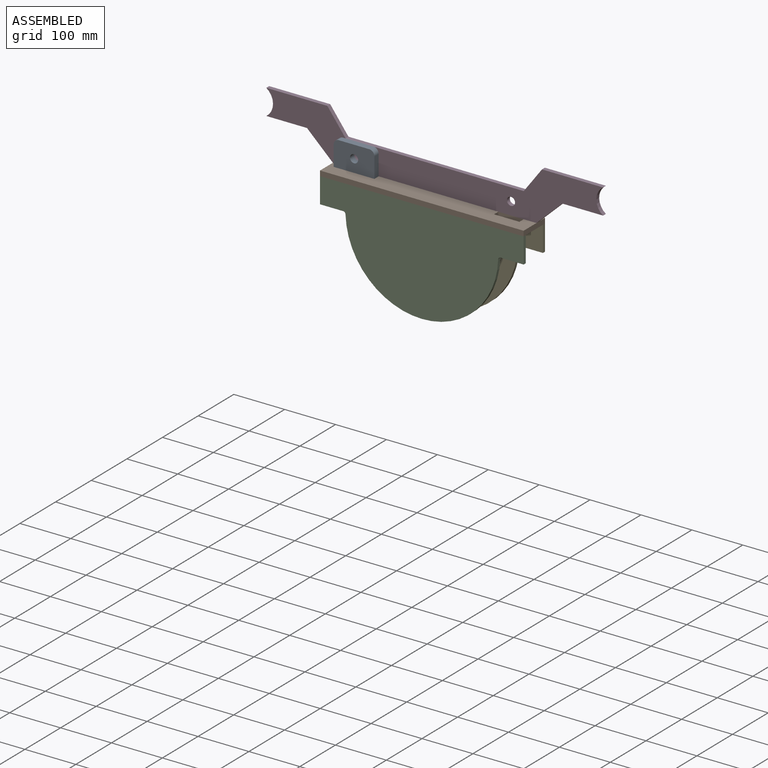
[diagram: assembled view]
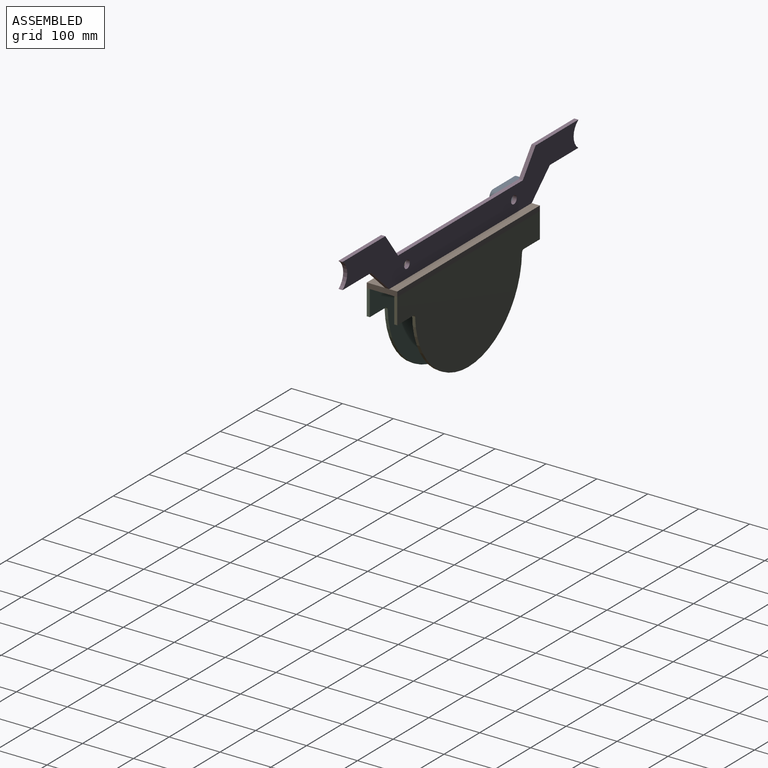
[diagram: assembled view, second angle]
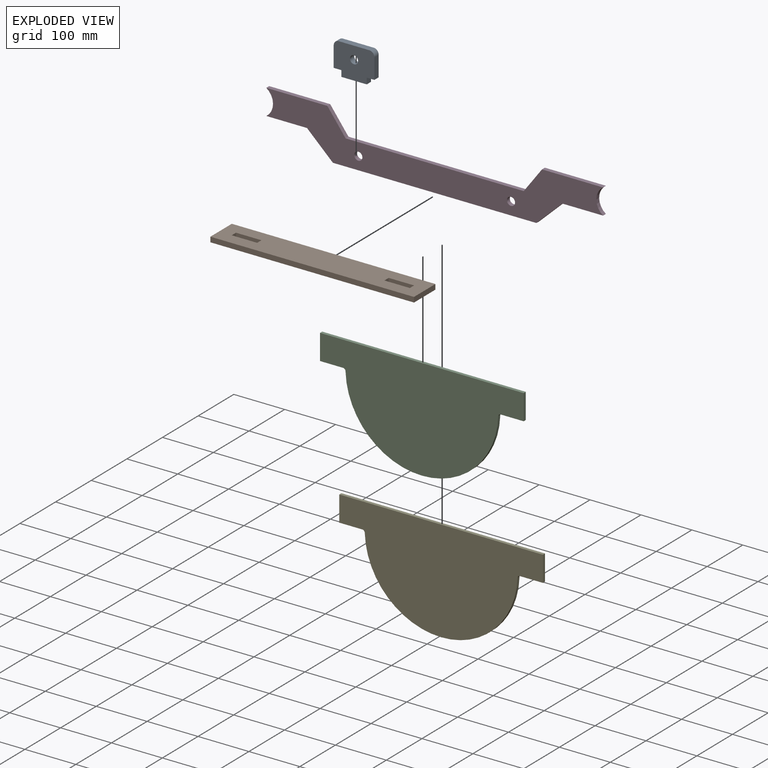
[diagram: exploded view]
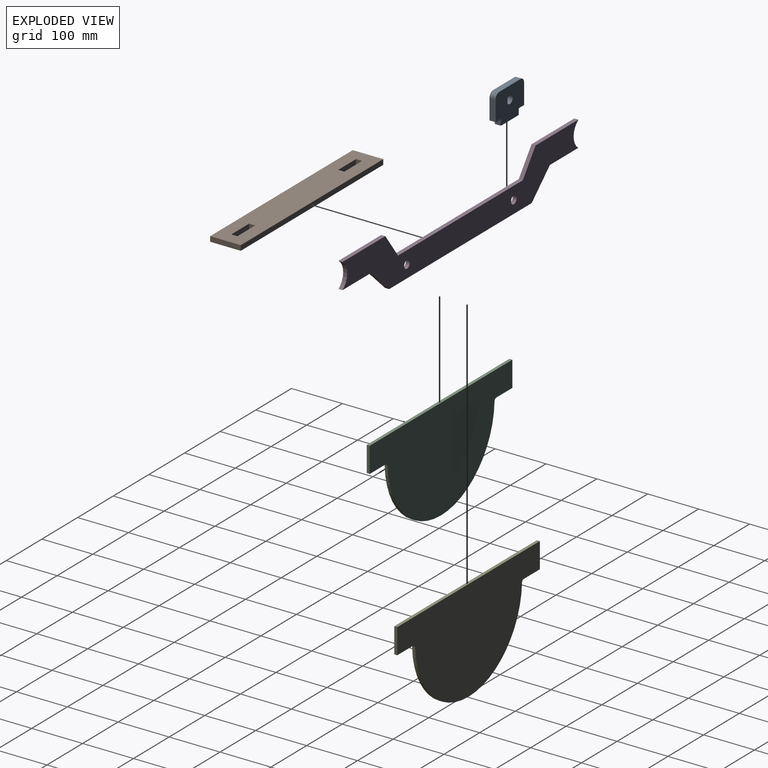
[diagram: exploded view, second angle]
ASSEMBLY  parts=5 mates=4
PART A: 13 faces, bbox 80x12x62 mm
  f0: plane 60x12mm, normal (0,0,1), area 720mm2, adj f9,f10,f11,f12
  f1: plane 40x12mm, normal (-1,0,0), area 480mm2, adj f2,f9,f10,f11
  f2: plane 15x12mm, normal (0,0,-1), area 180mm2, adj f1,f3,f9,f10
  f3: plane 12x12mm, normal (-1,0,0), area 144mm2, adj f2,f4,f9,f10
  f4: plane 50x12mm, normal (0,0,-1), area 600mm2, adj f3,f5,f9,f10
  f5: plane 12x12mm, normal (1,0,0), area 144mm2, adj f4,f6,f9,f10
  f6: plane 15x12mm, normal (0,0,-1), area 180mm2, adj f5,f7,f9,f10
  f7: plane 40x12mm, normal (1,0,0), area 480mm2, adj f6,f9,f10,f12
  f8: cylinder r=8mm len=16mm, axis (0,1,0), area 603.2mm2, adj f9,f10
  f9: plane 80x62mm, normal (0,-1,0), area 4356mm2, adj f0,f1,f2,f3,f4,f5,f6,f7
  f10: plane 80x62mm, normal (0,1,0), area 4356mm2, adj f0,f1,f2,f3,f4,f5,f6,f7
  f11: cylinder r=10mm len=12mm, axis (0,1,0), area 188.5mm2, adj f0,f1,f9,f10
  f12: cylinder r=10mm len=12mm, axis (0,1,0), area 188.5mm2, adj f0,f7,f9,f10
PART B: 14 faces, bbox 400x60x10 mm
  f0: plane 50x10mm, normal (0,1,0), area 500mm2, adj f1,f11,f12,f13
  f1: plane 12x10mm, normal (1,0,0), area 120mm2, adj f0,f2,f12,f13
  f2: plane 50x10mm, normal (0,-1,0), area 500mm2, adj f1,f11,f12,f13
  f3: plane 50x10mm, normal (0,1,0), area 500mm2, adj f4,f9,f12,f13
  f4: plane 12x10mm, normal (1,0,0), area 120mm2, adj f3,f5,f12,f13
  f5: plane 50x10mm, normal (0,-1,0), area 500mm2, adj f4,f9,f12,f13
  f6: plane 60x10mm, normal (-1,0,0), area 600mm2, adj f7,f10,f12,f13
  f7: plane 400x10mm, normal (0,-1,0), area 4000mm2, adj f6,f8,f12,f13
  f8: plane 60x10mm, normal (1,0,0), area 600mm2, adj f7,f10,f12,f13
  f9: plane 12x10mm, normal (-1,0,0), area 120mm2, adj f3,f5,f12,f13
  f10: plane 400x10mm, normal (0,1,0), area 4000mm2, adj f6,f8,f12,f13
  f11: plane 12x10mm, normal (-1,0,0), area 120mm2, adj f0,f2,f12,f13
  f12: plane 400x60mm, normal (0,0,1), area 22800mm2, adj f0,f1,f2,f3,f4,f5,f6,f7
  f13: plane 400x60mm, normal (0,0,-1), area 22800mm2, adj f0,f1,f2,f3,f4,f5,f6,f7
PART C: 10 faces, bbox 400x6x200 mm
  f0: plane 400x6mm, normal (0,0,1), area 2400mm2, adj f1,f5,f6,f7
  f1: plane 50x6mm, normal (-1,0,0), area 300mm2, adj f0,f2,f6,f7
  f2: plane 45.08x6mm, normal (0,0,-1), area 270.5mm2, adj f1,f6,f7,f8
  f3: cylinder r=150mm len=299.84mm, axis (0,1,0), area 2769.4mm2, adj f6,f7,f8,f9
  f4: plane 45.08x6mm, normal (0,0,-1), area 270.5mm2, adj f5,f6,f7,f9
  f5: plane 50x6mm, normal (1,0,0), area 300mm2, adj f0,f4,f6,f7
  f6: plane 400x200mm, normal (0,-1,0), area 55353.1mm2, adj f0,f1,f2,f3,f4,f5,f8,f9
  f7: plane 400x200mm, normal (0,1,0), area 55353.1mm2, adj f0,f1,f2,f3,f4,f5,f8,f9
  f8: cylinder r=5mm len=6mm, axis (0,1,0), area 46.2mm2, adj f2,f3,f6,f7
  f9: cylinder r=5mm len=6mm, axis (0,1,0), area 46.2mm2, adj f3,f4,f6,f7
PART D: 16 faces, bbox 661.7x8x98.1 mm
  f0: plane 80x8mm, normal (0,0,-1), area 640mm2, adj f1,f12,f14,f15
  f1: plane 50.83x48.12mm, normal (-0.69,0,-0.73), area 560mm2, adj f0,f2,f14,f15
  f2: plane 400x8mm, normal (0,0,-1), area 3200mm2, adj f1,f3,f14,f15
  f3: plane 50.83x48.12mm, normal (0.69,0,-0.73), area 560mm2, adj f2,f4,f14,f15
  f4: plane 80x8mm, normal (0,0,-1), area 640mm2, adj f3,f5,f14,f15
  f5: cylinder r=30.15mm len=50mm, axis (0,1,0), area 471.6mm2, adj f4,f6,f14,f15
  f6: plane 120x8mm, normal (0,0,1), area 960mm2, adj f5,f7,f14,f15
  f7: plane 48.12x35.83mm, normal (-0.8,0,0.6), area 480mm2, adj f6,f8,f14,f15
  f8: plane 350x8mm, normal (0,0,1), area 2800mm2, adj f7,f9,f14,f15
  f9: plane 48.12x35.83mm, normal (0.8,0,0.6), area 480mm2, adj f8,f10,f14,f15
  f10: plane 120x8mm, normal (0,0,1), area 960mm2, adj f9,f12,f14,f15
  f11: cylinder r=8mm len=16mm, axis (0,1,0), area 402.1mm2, adj f14,f15
  f12: cylinder r=30.15mm len=50mm, axis (0,1,0), area 471.6mm2, adj f0,f10,f14,f15
  f13: cylinder r=8mm len=16mm, axis (0,1,0), area 402.1mm2, adj f14,f15
  f14: plane 661.67x98.12mm, normal (0,-1,0), area 34874.5mm2, adj f0,f1,f2,f3,f4,f5,f6,f7
  f15: plane 661.67x98.12mm, normal (0,1,0), area 34874.5mm2, adj f0,f1,f2,f3,f4,f5,f6,f7
PART E: same geometry as C
PLACE A t=(-132.62,96.45,136.19)mm
PLACE B rot(axis=(1,0,0),180deg) t=(8.03,73.81,86.19)mm
PLACE C t=(17.38,66.45,76.19)mm
PLACE D t=(17.57,104.45,143.04)mm
PLACE E t=(17.38,120.45,76.19)mm
MATE fastened E.f0 <-> B.f12  axis (0,0,1) through (-182.62,120.45,76.19)mm
MATE fastened C.f0 <-> B.f12  axis (0,0,1) through (-182.62,60.45,76.19)mm
MATE fastened A.f2 <-> B.f13  axis (0,0,1) through (-157.62,84.45,86.19)mm
MATE fastened D.f11 <-> A.f8  axis (0,-1,0) through (-132.62,96.45,111.19)mm
